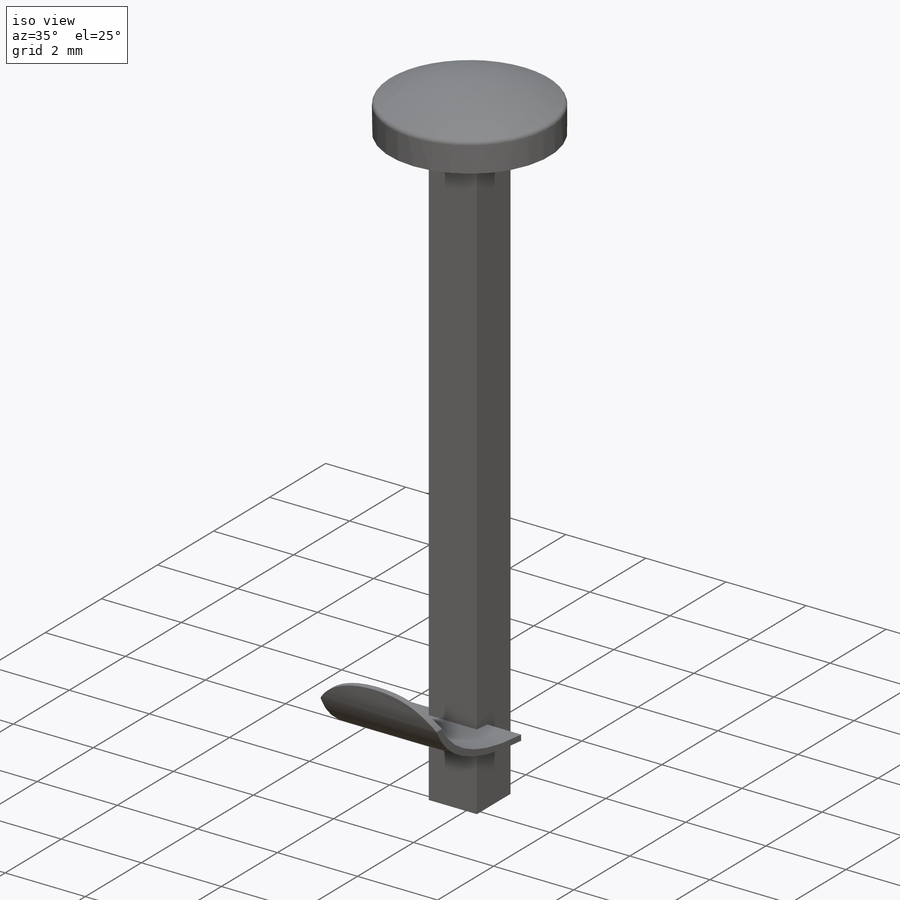
[diagram: iso view]
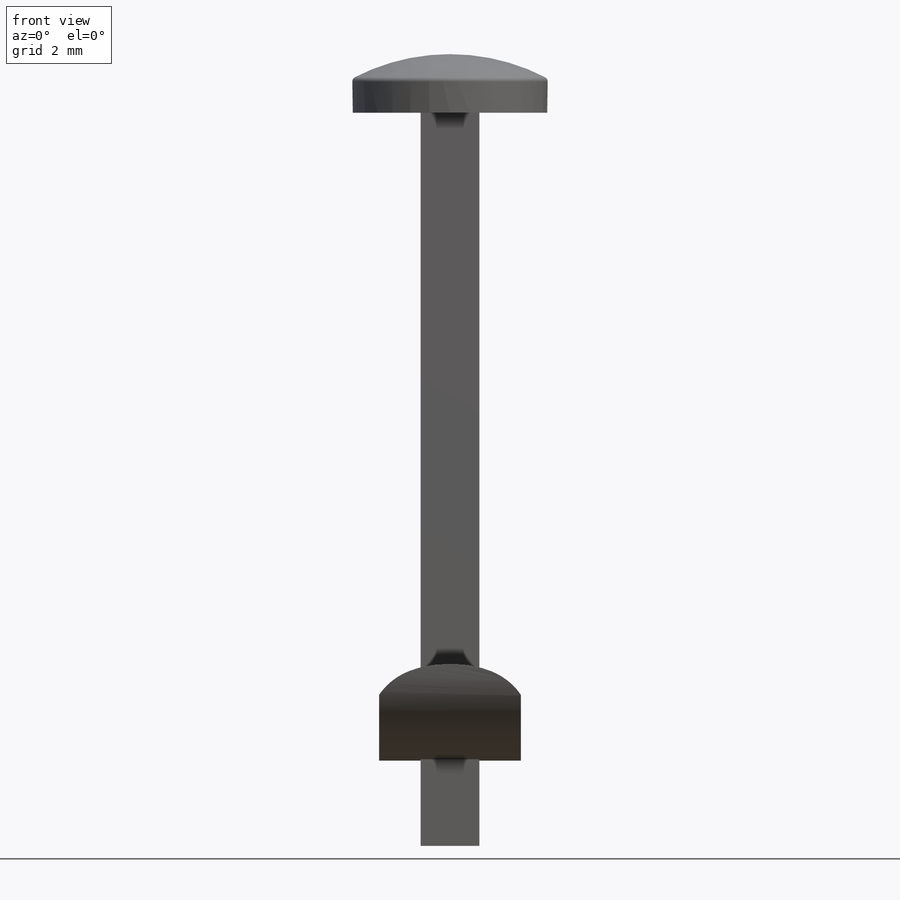
[diagram: front view]
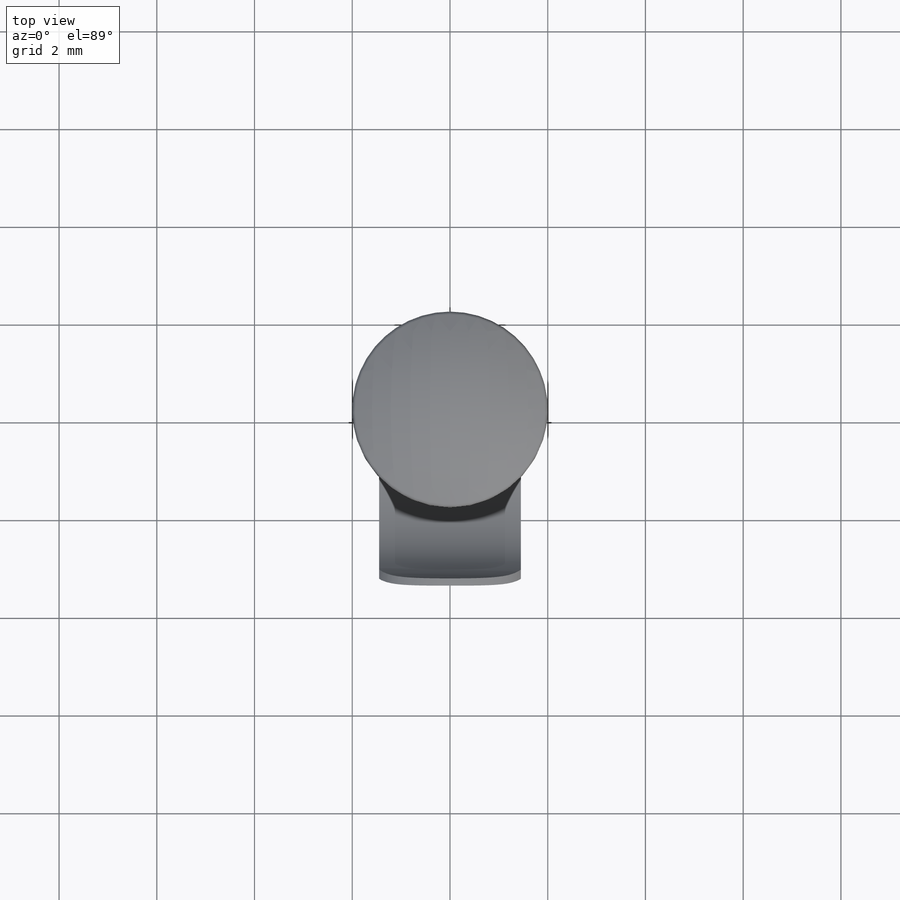
[diagram: top view]
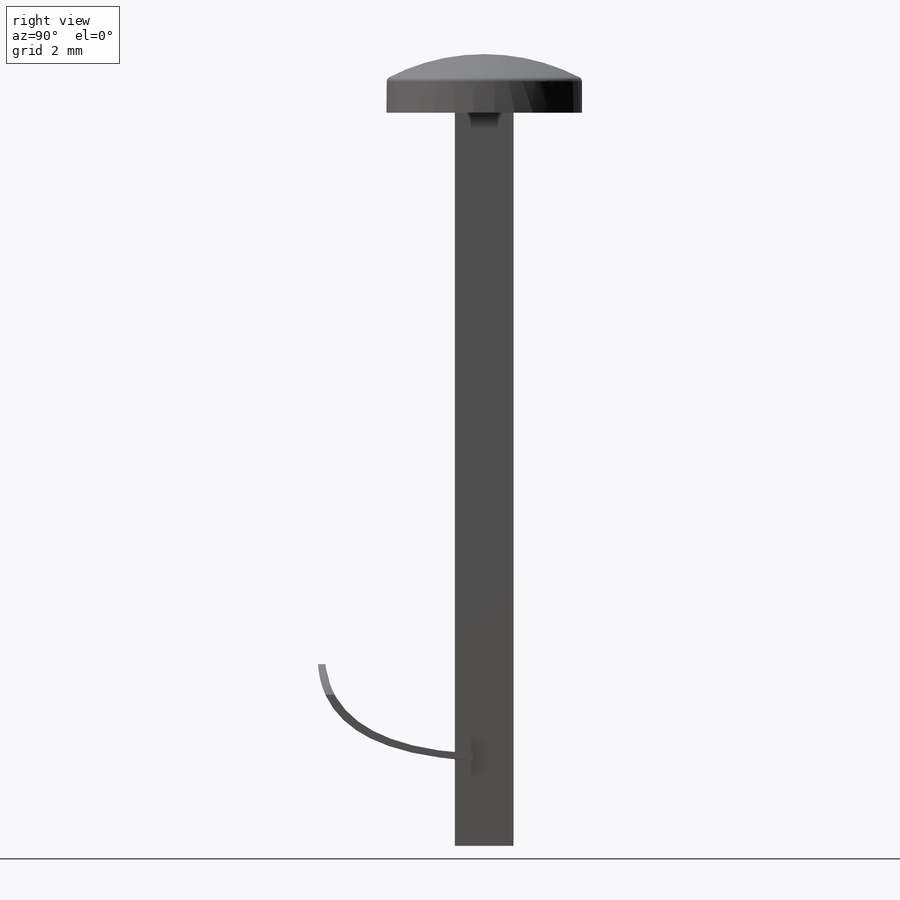
[diagram: right view]
SOLIDWORKS PART (.sldprt)
format: sldprt  version: not decoded by parser v0  size: 182,272 bytes
history: native  units: mm
features: sketch x4, extrude x3, material x1, dome x1, fillet x1, plane x1, cut_extrude x1 (+11 scaffold rows collapsed)
feature tree (23):
  scaffold x11  (default folders/planes/origin — collapsed)
  material  "Material <not specified>"
  sketch  "Sketch1"  dims[D1=1.2mm D2=1.2mm]
  extrude  "Boss-Extrude1"  Depth=15mm
  sketch  "Sketch2"  dims[D1=4.0mm]
  extrude  "Boss-Extrude2"  Depth=0.7mm
  dome  "Dome1"
  fillet  "Fillet1"  Radius=0.1mm
  sketch  "Sketch4"  dims[D1=3.0mm D2=0.15mm D3=0.15mm]
  extrude  "Boss-Extrude4"  Depth=2.9mm
  plane  "Plane1"  Offset=3mm
  sketch  "Sketch5"
  cut_extrude  "Cut-Extrude1"  Depth=1mm
decode coverage: 8 of 10 modeling features carry decoded parameters
note: suppression state not decoded; provenance and decode notes live in map.json
